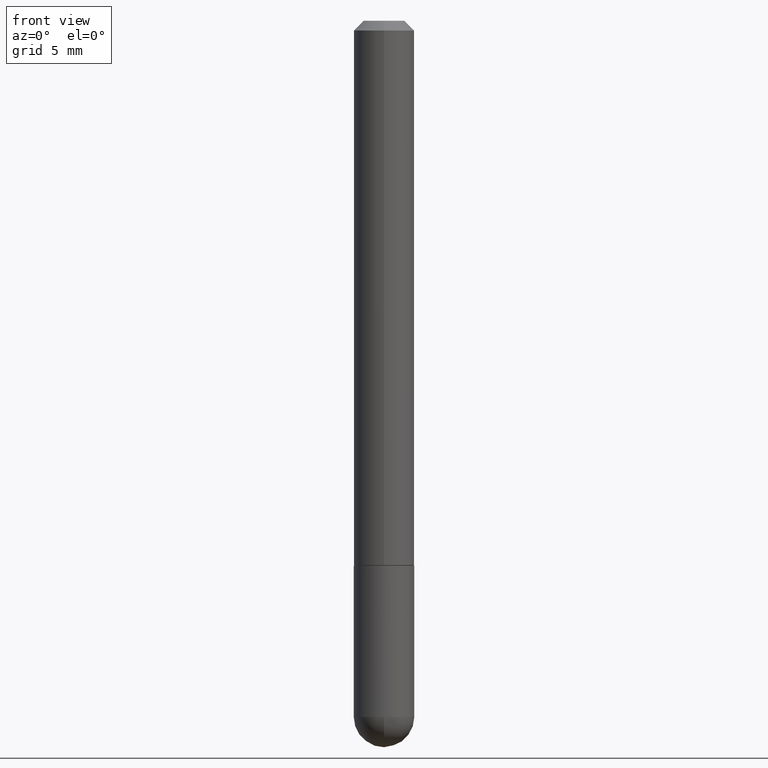
[diagram: clean part render]
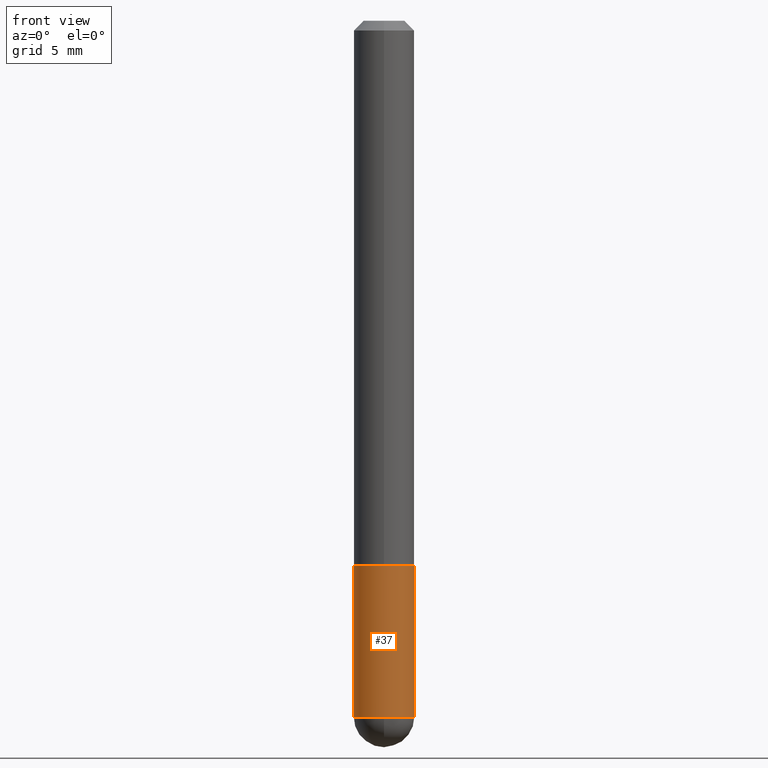
[diagram: same view with one face highlighted and labeled with its STEP entity id]
A machine part, front view. The second image highlights one B-rep face of the part: STEP entity #37.
In plain terms, the highlighted cylindrical surface (edge-blend (fillet) strip) has radius 1.5875 mm, axis along (-0, 0, 1).
Its self-contained STEP definition (entity closure, byte-faithful):
#18 = EDGE_LOOP ( 'NONE', ( #113, #216, #244, #397, #333 ) ) ;
#19 = DIRECTION ( 'NONE',  ( -2.445468806185136877E-29, 3.491481338843145188E-15, 1.000000000000000000 ) ) ;
#32 = CIRCLE ( 'NONE', #269, 0.06249999999999995143 ) ;
#37 = ADVANCED_FACE ( 'NONE', ( #122 ), #259, .T. ) ;
#38 = CIRCLE ( 'NONE', #265, 0.06249999999999995143 ) ;
#41 = EDGE_CURVE ( 'NONE', #392, #52, #256, .T. ) ;
#52 = VERTEX_POINT ( 'NONE', #381 ) ;
#60 = CARTESIAN_POINT ( 'NONE',  ( 0.000000000000000000, 0.000000000000000000, 0.000000000000000000 ) ) ;
#62 = VECTOR ( 'NONE', #88, 39.37007874015748143 ) ;
#64 = CARTESIAN_POINT ( 'NONE',  ( 2.751152406958278111E-29, -3.927916506198538435E-15, -1.124999999999999778 ) ) ;
#88 = DIRECTION ( 'NONE',  ( -2.445468806185136877E-29, 3.491481338843145188E-15, 1.000000000000000000 ) ) ;
#90 = DIRECTION ( 'NONE',  ( 1.000000000000000000, -6.982962677686267499E-15, 4.876176775795936353E-29 ) ) ;
#100 = DIRECTION ( 'NONE',  ( -2.445468806185136597E-29, 3.491481338843145583E-15, 1.000000000000000000 ) ) ;
#113 = ORIENTED_EDGE ( 'NONE', *, *, #41, .F. ) ;
#118 = EDGE_CURVE ( 'NONE', #370, #363, #32, .T. ) ;
#122 = FACE_OUTER_BOUND ( 'NONE', #18, .T. ) ;
#132 = CARTESIAN_POINT ( 'NONE',  ( -0.06249999999999995143, -4.029371255542718167E-15, -1.437500000000000222 ) ) ;
#157 = DIRECTION ( 'NONE',  ( 1.000000000000000000, -6.982962677686268288E-15, 0.000000000000000000 ) ) ;
#182 = EDGE_CURVE ( 'NONE', #363, #304, #408, .T. ) ;
#191 = DIRECTION ( 'NONE',  ( -2.445468806185136597E-29, 3.491481338843145583E-15, 1.000000000000000000 ) ) ;
#204 = DIRECTION ( 'NONE',  ( 1.000000000000000000, -6.982962677686269077E-15, 0.000000000000000000 ) ) ;
#212 = AXIS2_PLACEMENT_3D ( 'NONE', #64, #268, #204 ) ;
#214 = DIRECTION ( 'NONE',  ( 1.000000000000000000, -6.982962677686268288E-15, 0.000000000000000000 ) ) ;
#216 = ORIENTED_EDGE ( 'NONE', *, *, #327, .T. ) ;
#244 = ORIENTED_EDGE ( 'NONE', *, *, #118, .T. ) ;
#249 = CARTESIAN_POINT ( 'NONE',  ( 3.515361408891134418E-29, -5.019004424587023131E-15, -1.437500000000000222 ) ) ;
#250 = CARTESIAN_POINT ( 'NONE',  ( 3.515361408891134418E-29, -5.019004424587023131E-15, -1.437500000000000222 ) ) ;
#256 = LINE ( 'NONE', #346, #62 ) ;
#259 = CYLINDRICAL_SURFACE ( 'NONE', #306, 0.06249999999999997918 ) ;
#265 = AXIS2_PLACEMENT_3D ( 'NONE', #249, #191, #214 ) ;
#268 = DIRECTION ( 'NONE',  ( -2.445468806185136597E-29, 3.491481338843145583E-15, 1.000000000000000000 ) ) ;
#269 = AXIS2_PLACEMENT_3D ( 'NONE', #250, #400, #157 ) ;
#283 = CARTESIAN_POINT ( 'NONE',  ( 0.06249999999999997918, -4.364351673553915708E-16, 3.047610484872459170E-30 ) ) ;
#304 = VERTEX_POINT ( 'NONE', #396 ) ;
#306 = AXIS2_PLACEMENT_3D ( 'NONE', #60, #100, #90 ) ;
#322 = CARTESIAN_POINT ( 'NONE',  ( -4.440892098500294840E-16, -0.06250000000000532907, -1.437500000000000000 ) ) ;
#327 = EDGE_CURVE ( 'NONE', #392, #370, #38, .T. ) ;
#333 = ORIENTED_EDGE ( 'NONE', *, *, #383, .F. ) ;
#342 = VECTOR ( 'NONE', #19, 39.37007874015748143 ) ;
#346 = CARTESIAN_POINT ( 'NONE',  ( -0.06249999999999997918, 4.440892098500624683E-16, -3.074334431409315413E-30 ) ) ;
#349 = CARTESIAN_POINT ( 'NONE',  ( 0.06249999999999995143, -4.909895632748172453E-15, -1.437500000000000222 ) ) ;
#363 = VERTEX_POINT ( 'NONE', #349 ) ;
#370 = VERTEX_POINT ( 'NONE', #322 ) ;
#376 = CIRCLE ( 'NONE', #212, 0.06250000000000001388 ) ;
#381 = CARTESIAN_POINT ( 'NONE',  ( -0.06250000000000001388, -4.029371255542718167E-15, -1.124999999999999778 ) ) ;
#383 = EDGE_CURVE ( 'NONE', #52, #304, #376, .T. ) ;
#392 = VERTEX_POINT ( 'NONE', #132 ) ;
#396 = CARTESIAN_POINT ( 'NONE',  ( 0.06250000000000001388, -4.364351673553930105E-15, -1.124999999999999778 ) ) ;
#397 = ORIENTED_EDGE ( 'NONE', *, *, #182, .T. ) ;
#400 = DIRECTION ( 'NONE',  ( -2.445468806185136597E-29, 3.491481338843145583E-15, 1.000000000000000000 ) ) ;
#408 = LINE ( 'NONE', #283, #342 ) ;